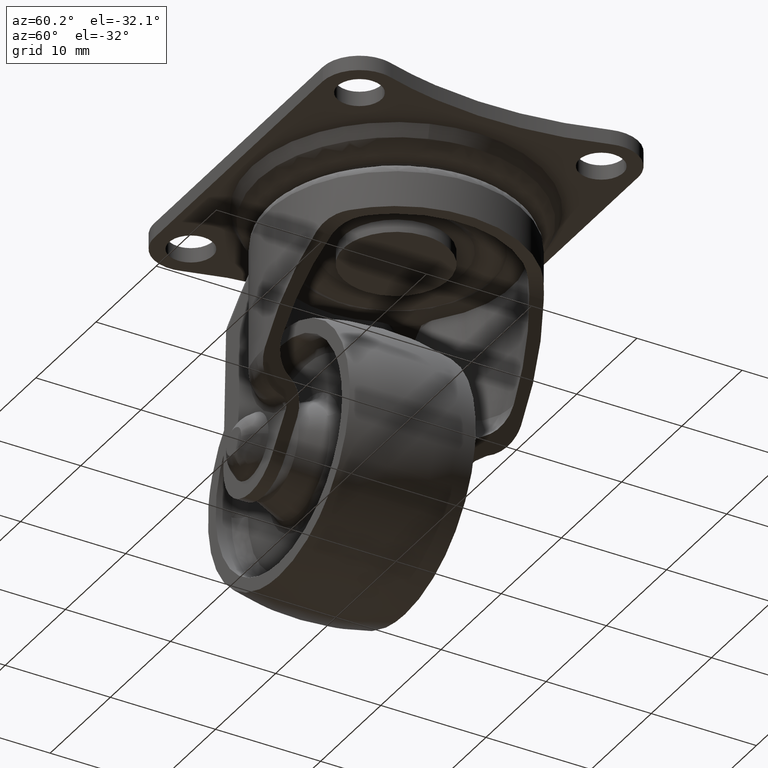
[diagram: clean part render]
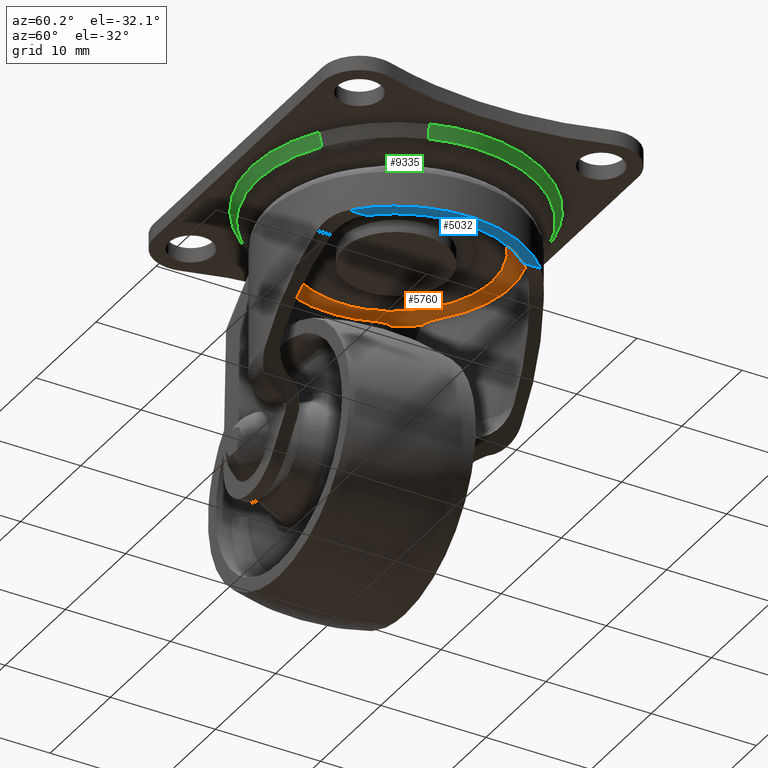
[diagram: same view with three faces highlighted in distinct colors, each labeled with its STEP entity id]
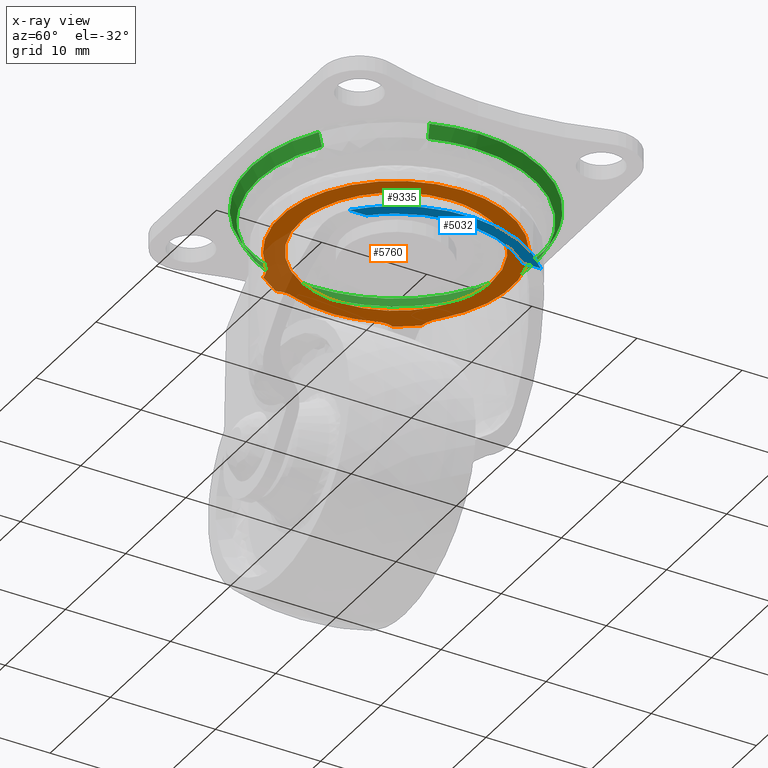
[diagram: x-ray of the same camera — body ghosted, the three highlighted faces saturated]
A machine part, auxiliary view with three faces highlighted in distinct colors.
The next image is the same camera in x-ray (body ghosted, the three faces saturated) — at least one of them is partly hidden behind the body in this view.
Their STEP definitions:

[orange] entity #5760 — the highlighted face is a freeform B-spline surface patch.
#650=CARTESIAN_POINT('',(0.640955220899355,-9.169265091409871,-5.699996641912334));
#651=VERTEX_POINT('',#650);
#665=CARTESIAN_POINT('',(-9.191638786499871,0.0,-5.699998000000001));
#666=VERTEX_POINT('',#665);
#667=CARTESIAN_POINT('',(0.640955220899355,-9.169265091409871,-5.699996641912334));
#668=CARTESIAN_POINT('',(0.320868190813255,-9.191639978524334,-5.699996664017704));
#669=CARTESIAN_POINT('',(0.000000081847118,-9.191639957374065,-5.699996687722237));
#670=CARTESIAN_POINT('',(-9.191638747004900,-9.191639351500124,-5.699997366766071));
#671=CARTESIAN_POINT('',(-9.191638786499871,0.0,-5.699998000000001));
#679=(BOUNDED_CURVE()B_SPLINE_CURVE(2,(#667,#668,#669,#670,#671),.UNSPECIFIED.,.F.,.U.)B_SPLINE_CURVE_WITH_KNOTS((3,2,3),(0.737833831403957,0.750000000000000,1.0),.UNSPECIFIED.)CURVE()GEOMETRIC_REPRESENTATION_ITEM()RATIONAL_B_SPLINE_CURVE((0.972880182797308,0.985746446877111,1.0,0.707106781186547,1.0))REPRESENTATION_ITEM(''));
#680=EDGE_CURVE('',#651,#666,#679,.T.);
#682=CARTESIAN_POINT('',(-0.115502499608276,9.190913053342241,-5.699997999998556));
#683=VERTEX_POINT('',#682);
#684=CARTESIAN_POINT('',(-9.191638786499871,0.0,-5.699998000000001));
#685=CARTESIAN_POINT('',(-9.191638786499871,9.076852957020531,-5.699998000000000));
#686=CARTESIAN_POINT('',(-0.115502499608276,9.190913053342241,-5.699997999998556));
#694=(BOUNDED_CURVE()B_SPLINE_CURVE(2,(#684,#685,#686),.UNSPECIFIED.,.F.,.U.)B_SPLINE_CURVE_WITH_KNOTS((3,3),(0.0,0.247784295920820),.UNSPECIFIED.)CURVE()GEOMETRIC_REPRESENTATION_ITEM()RATIONAL_B_SPLINE_CURVE((1.0,0.709702639985304,0.994854295641922))REPRESENTATION_ITEM(''));
#695=EDGE_CURVE('',#666,#683,#694,.T.);
#782=CARTESIAN_POINT('',(9.191638786499871,0.0,-5.699998000000001));
#783=VERTEX_POINT('',#782);
#784=CARTESIAN_POINT('',(-0.115502499608276,9.190913053342241,-5.699997999998556));
#785=CARTESIAN_POINT('',(-0.057753529803961,9.191638786499873,-5.699998000000001));
#786=CARTESIAN_POINT('',(0.0,9.191638786499871,-5.699998000000001));
#787=CARTESIAN_POINT('',(9.191638786499871,9.191638786499871,-5.699998000000000));
#788=CARTESIAN_POINT('',(9.191638786499871,0.0,-5.699998000000001));
#796=(BOUNDED_CURVE()B_SPLINE_CURVE(2,(#784,#785,#786,#787,#788),.UNSPECIFIED.,.F.,.U.)B_SPLINE_CURVE_WITH_KNOTS((3,2,3),(0.247784295920820,0.250000000000000,0.500000000000000),.UNSPECIFIED.)CURVE()GEOMETRIC_REPRESENTATION_ITEM()RATIONAL_B_SPLINE_CURVE((0.994854295641922,0.997404141201243,1.0,0.707106781186547,1.0))REPRESENTATION_ITEM(''));
#797=EDGE_CURVE('',#683,#783,#796,.T.);
#799=CARTESIAN_POINT('',(9.191638786499871,0.0,-5.699998000000001));
#800=CARTESIAN_POINT('',(9.191638828852017,-8.571549698878044,-5.699997320956165));
#801=CARTESIAN_POINT('',(0.640955220899355,-9.169265091409871,-5.699996641912334));
#809=(BOUNDED_CURVE()B_SPLINE_CURVE(2,(#799,#800,#801),.UNSPECIFIED.,.F.,.U.)B_SPLINE_CURVE_WITH_KNOTS((3,3),(0.500000000000000,0.737833831403957),.UNSPECIFIED.)CURVE()GEOMETRIC_REPRESENTATION_ITEM()RATIONAL_B_SPLINE_CURVE((1.0,0.721360334309436,0.972880182797308))REPRESENTATION_ITEM(''));
#810=EDGE_CURVE('',#783,#651,#809,.T.);
#2595=CARTESIAN_POINT('',(-10.263978305612820,5.563625082850160,-5.699998000000001));
#2596=VERTEX_POINT('',#2595);
#2610=CARTESIAN_POINT('',(-10.235383220148220,4.029507455844700,-5.699998000000001));
#2611=VERTEX_POINT('',#2610);
#2612=CARTESIAN_POINT('',(-10.235383220148220,4.029507455844700,-5.699998000000001));
#2613=CARTESIAN_POINT('',(-9.931066366662758,4.802505061608022,-5.699998000000001));
#2614=CARTESIAN_POINT('',(-10.263978305612820,5.563625082850158,-5.699998000000001));
#2622=(BOUNDED_CURVE()B_SPLINE_CURVE(2,(#2612,#2613,#2614),.UNSPECIFIED.,.F.,.U.)CURVE()GEOMETRIC_REPRESENTATION_ITEM()QUASI_UNIFORM_CURVE()RATIONAL_B_SPLINE_CURVE((1.0,0.923500995789881,1.0))REPRESENTATION_ITEM(''));
#2623=EDGE_CURVE('',#2611,#2596,#2622,.T.);
#2680=CARTESIAN_POINT('',(-10.235383220148220,-4.029507455844700,-5.699998000000001));
#2681=VERTEX_POINT('',#2680);
#2687=CARTESIAN_POINT('',(-10.263978305612820,-5.563625082850160,-5.699998000000001));
#2688=VERTEX_POINT('',#2687);
#2689=CARTESIAN_POINT('',(-10.263978305612820,-5.563625082850160,-5.699998000000001));
#2690=CARTESIAN_POINT('',(-9.931066366662758,-4.802505061608023,-5.699998000000001));
#2691=CARTESIAN_POINT('',(-10.235383220148220,-4.029507455844701,-5.699998000000001));
#2699=(BOUNDED_CURVE()B_SPLINE_CURVE(2,(#2689,#2690,#2691),.UNSPECIFIED.,.F.,.U.)CURVE()GEOMETRIC_REPRESENTATION_ITEM()QUASI_UNIFORM_CURVE()RATIONAL_B_SPLINE_CURVE((1.0,0.923500995789881,1.0))REPRESENTATION_ITEM(''));
#2700=EDGE_CURVE('',#2688,#2681,#2699,.T.);
#3120=CARTESIAN_POINT('',(-8.932137639889501,-7.517984563876110,-5.699998000000001));
#3121=VERTEX_POINT('',#3120);
#3129=CARTESIAN_POINT('',(-7.275815214511270,-8.250000785714290,-5.699998000000001));
#3130=VERTEX_POINT('',#3129);
#3131=CARTESIAN_POINT('',(-7.275815214511265,-8.250000785714287,-5.699998000000001));
#3132=CARTESIAN_POINT('',(-7.988107636542360,-7.621818052644859,-5.699998000000002));
#3133=CARTESIAN_POINT('',(-8.932137639889501,-7.517984563876112,-5.699998000000001));
#3141=(BOUNDED_CURVE()B_SPLINE_CURVE(2,(#3131,#3132,#3133),.UNSPECIFIED.,.F.,.U.)CURVE()GEOMETRIC_REPRESENTATION_ITEM()QUASI_UNIFORM_CURVE()RATIONAL_B_SPLINE_CURVE((1.0,0.953367544172803,1.0))REPRESENTATION_ITEM(''));
#3142=EDGE_CURVE('',#3130,#3121,#3141,.T.);
#3416=CARTESIAN_POINT('',(-7.275815214511270,8.250000785714290,-5.699998000000001));
#3417=VERTEX_POINT('',#3416);
#3423=CARTESIAN_POINT('',(-8.932137639889501,7.517984563876110,-5.699998000000001));
#3424=VERTEX_POINT('',#3423);
#3425=CARTESIAN_POINT('',(-8.932137639889502,7.517984563876111,-5.699998000000001));
#3426=CARTESIAN_POINT('',(-7.988107636542360,7.621818052644859,-5.699998000000001));
#3427=CARTESIAN_POINT('',(-7.275815214511265,8.250000785714287,-5.699998000000001));
#3435=(BOUNDED_CURVE()B_SPLINE_CURVE(2,(#3425,#3426,#3427),.UNSPECIFIED.,.F.,.U.)CURVE()GEOMETRIC_REPRESENTATION_ITEM()QUASI_UNIFORM_CURVE()RATIONAL_B_SPLINE_CURVE((1.0,0.953367544172803,1.0))REPRESENTATION_ITEM(''));
#3436=EDGE_CURVE('',#3424,#3417,#3435,.T.);
#5193=CARTESIAN_POINT('',(-7.275815214511273,8.250000785714283,-5.699998000000001));
#5194=CARTESIAN_POINT('',(0.636537104773647,15.228038107469818,-5.699998000000002));
#5195=CARTESIAN_POINT('',(7.938936569173584,7.614019053734915,-5.699998000000001));
#5196=CARTESIAN_POINT('',(15.241336033573523,1.214306E-014,-5.699998000000002));
#5197=CARTESIAN_POINT('',(7.938936569173596,-7.614019053734904,-5.699998000000001));
#5198=CARTESIAN_POINT('',(0.636537104773664,-15.228038107469832,-5.699998000000002));
#5199=CARTESIAN_POINT('',(-7.275815214511269,-8.250000785714287,-5.699998000000001));
#5207=(BOUNDED_CURVE()B_SPLINE_CURVE(2,(#5193,#5194,#5195,#5196,#5197,#5198,#5199),.UNSPECIFIED.,.F.,.U.)B_SPLINE_CURVE_WITH_KNOTS((3,2,2,3),(0.0,0.333333333333333,0.666666666666667,1.0),.UNSPECIFIED.)CURVE()GEOMETRIC_REPRESENTATION_ITEM()RATIONAL_B_SPLINE_CURVE((1.0,0.721721506288508,1.0,0.721721506288508,1.0,0.721721506288508,1.0))REPRESENTATION_ITEM(''));
#5208=EDGE_CURVE('',#3417,#3130,#5207,.T.);
#5309=CARTESIAN_POINT('',(-8.932137639889499,-7.517984563876106,-5.699998000000001));
#5310=CARTESIAN_POINT('',(-9.697544790603258,-6.608602273630208,-5.699998000000001));
#5311=CARTESIAN_POINT('',(-10.263978305612820,-5.563625082850163,-5.699998000000001));
#5319=(BOUNDED_CURVE()B_SPLINE_CURVE(2,(#5309,#5310,#5311),.UNSPECIFIED.,.F.,.U.)CURVE()GEOMETRIC_REPRESENTATION_ITEM()QUASI_UNIFORM_CURVE()RATIONAL_B_SPLINE_CURVE((1.0,0.994857291440790,1.0))REPRESENTATION_ITEM(''));
#5320=EDGE_CURVE('',#3121,#2688,#5319,.T.);
#5360=CARTESIAN_POINT('',(-10.263978305612820,5.563625082850161,-5.699998000000001));
#5361=CARTESIAN_POINT('',(-9.697544790603262,6.608602273630203,-5.699998000000001));
#5362=CARTESIAN_POINT('',(-8.932137639889501,7.517984563876103,-5.699998000000001));
#5370=(BOUNDED_CURVE()B_SPLINE_CURVE(2,(#5360,#5361,#5362),.UNSPECIFIED.,.F.,.U.)CURVE()GEOMETRIC_REPRESENTATION_ITEM()QUASI_UNIFORM_CURVE()RATIONAL_B_SPLINE_CURVE((1.0,0.994857291440790,1.0))REPRESENTATION_ITEM(''));
#5371=EDGE_CURVE('',#2596,#3424,#5370,.T.);
#5476=CARTESIAN_POINT('',(-10.235383220148231,-4.029507455844703,-5.699998000000001));
#5477=CARTESIAN_POINT('',(-11.821736167319358,-3.469447E-015,-5.699998000000001));
#5478=CARTESIAN_POINT('',(-10.235383220148231,4.029507455844700,-5.699998000000001));
#5486=(BOUNDED_CURVE()B_SPLINE_CURVE(2,(#5476,#5477,#5478),.UNSPECIFIED.,.F.,.U.)CURVE()GEOMETRIC_REPRESENTATION_ITEM()QUASI_UNIFORM_CURVE()RATIONAL_B_SPLINE_CURVE((1.0,0.930489383649839,1.0))REPRESENTATION_ITEM(''));
#5487=EDGE_CURVE('',#2681,#2611,#5486,.T.);
#5739=CARTESIAN_POINT('',(-12.098899957359730,-12.088344324271880,-5.699998000000001));
#5740=CARTESIAN_POINT('',(12.098900547445680,-12.088344324271880,-5.699998000000001));
#5741=CARTESIAN_POINT('',(-12.098899957359730,12.088343002598251,-5.699998000000001));
#5742=CARTESIAN_POINT('',(12.098900547445680,12.088343002598251,-5.699998000000001));
#5743=B_SPLINE_SURFACE_WITH_KNOTS('',1,1,((#5739,#5741),(#5740,#5742)),.UNSPECIFIED.,.F.,.F.,.U.,(2,2),(2,2),(0.0,24.197800504805411),(0.0,24.176687326870130),.UNSPECIFIED.);
#5744=ORIENTED_EDGE('',*,*,#5320,.T.);
#5745=ORIENTED_EDGE('',*,*,#2700,.T.);
#5746=ORIENTED_EDGE('',*,*,#5487,.T.);
#5747=ORIENTED_EDGE('',*,*,#2623,.T.);
#5748=ORIENTED_EDGE('',*,*,#5371,.T.);
#5749=ORIENTED_EDGE('',*,*,#3436,.T.);
#5750=ORIENTED_EDGE('',*,*,#5208,.T.);
#5751=ORIENTED_EDGE('',*,*,#3142,.T.);
#5752=EDGE_LOOP('',(#5744,#5745,#5746,#5747,#5748,#5749,#5750,#5751));
#5753=FACE_OUTER_BOUND('',#5752,.T.);
#5754=ORIENTED_EDGE('',*,*,#695,.F.);
#5755=ORIENTED_EDGE('',*,*,#680,.F.);
#5756=ORIENTED_EDGE('',*,*,#810,.F.);
#5757=ORIENTED_EDGE('',*,*,#797,.F.);
#5758=EDGE_LOOP('',(#5754,#5755,#5756,#5757));
#5759=FACE_BOUND('',#5758,.T.);
#5760=ADVANCED_FACE('',(#5753,#5759),#5743,.F.);

[blue] entity #5032 — the highlighted face is a freeform B-spline surface patch.
#4979=CARTESIAN_POINT('',(12.404795246418839,-10.034448668749681,-8.900000000000000));
#4980=CARTESIAN_POINT('',(7.895195515276496,-10.034448668749681,-8.900000000000000));
#4981=CARTESIAN_POINT('',(12.404795246418839,10.034448016217890,-8.900000000000000));
#4982=CARTESIAN_POINT('',(7.895195515276496,10.034448016217890,-8.900000000000000));
#4983=B_SPLINE_SURFACE_WITH_KNOTS('',1,1,((#4979,#4981),(#4980,#4982)),.UNSPECIFIED.,.F.,.F.,.U.,(2,2),(2,2),(0.0,4.509599731142346),(0.0,20.068896684967580),.UNSPECIFIED.);
#4984=CARTESIAN_POINT('',(8.099991054950829,9.123055678319441,-8.900000000000000));
#4985=VERTEX_POINT('',#4984);
#4986=CARTESIAN_POINT('',(8.099991054950829,-9.123055678319441,-8.900000000000000));
#4987=VERTEX_POINT('',#4986);
#4988=CARTESIAN_POINT('',(8.099991054950827,9.123055678319442,-8.900000000000000));
#4989=CARTESIAN_POINT('',(12.200000000000001,5.482824055154087,-8.900000000000000));
#4990=CARTESIAN_POINT('',(12.199999999999999,0.0,-8.900000000000000));
#4991=CARTESIAN_POINT('',(12.200000000000001,-5.482824055154083,-8.900000000000000));
#4992=CARTESIAN_POINT('',(8.099991054950829,-9.123055678319439,-8.900000000000000));
#5000=(BOUNDED_CURVE()B_SPLINE_CURVE(2,(#4988,#4989,#4990,#4991,#4992),.UNSPECIFIED.,.F.,.U.)B_SPLINE_CURVE_WITH_KNOTS((3,2,3),(0.0,0.500000000000000,1.0),.UNSPECIFIED.)CURVE()GEOMETRIC_REPRESENTATION_ITEM()RATIONAL_B_SPLINE_CURVE((1.0,0.912122166441742,1.0,0.912122166441742,1.0))REPRESENTATION_ITEM(''));
#5001=EDGE_CURVE('',#4985,#4987,#5000,.T.);
#5002=ORIENTED_EDGE('',*,*,#5001,.T.);
#5003=CARTESIAN_POINT('',(8.099991054950829,-7.442455569885290,-8.900000000000000));
#5004=VERTEX_POINT('',#5003);
#5005=CARTESIAN_POINT('',(8.099991054950829,-7.442455569885290,-8.900000000000000));
#5006=CARTESIAN_POINT('',(8.099991054950829,-9.123055678319441,-8.900000000000000));
#5007=QUASI_UNIFORM_CURVE('',1,(#5005,#5006),.UNSPECIFIED.,.F.,.U.);
#5008=EDGE_CURVE('',#5004,#4987,#5007,.T.);
#5009=ORIENTED_EDGE('',*,*,#5008,.F.);
#5010=CARTESIAN_POINT('',(8.099991054950829,7.442455569885290,-8.900000000000000));
#5011=VERTEX_POINT('',#5010);
#5012=CARTESIAN_POINT('',(8.099991054950829,7.442455569885287,-8.900000000000000));
#5013=CARTESIAN_POINT('',(14.938288101694022,8.673617E-016,-8.900000000000000));
#5014=CARTESIAN_POINT('',(8.099991054950829,-7.442455569885286,-8.900000000000000));
#5022=(BOUNDED_CURVE()B_SPLINE_CURVE(2,(#5012,#5013,#5014),.UNSPECIFIED.,.F.,.U.)CURVE()GEOMETRIC_REPRESENTATION_ITEM()QUASI_UNIFORM_CURVE()RATIONAL_B_SPLINE_CURVE((1.0,0.736362823177348,1.0))REPRESENTATION_ITEM(''));
#5023=EDGE_CURVE('',#5011,#5004,#5022,.T.);
#5024=ORIENTED_EDGE('',*,*,#5023,.F.);
#5025=CARTESIAN_POINT('',(8.099991054950829,9.123055678319441,-8.900000000000000));
#5026=CARTESIAN_POINT('',(8.099991054950829,7.442455569885290,-8.900000000000000));
#5027=QUASI_UNIFORM_CURVE('',1,(#5025,#5026),.UNSPECIFIED.,.F.,.U.);
#5028=EDGE_CURVE('',#4985,#5011,#5027,.T.);
#5029=ORIENTED_EDGE('',*,*,#5028,.F.);
#5030=EDGE_LOOP('',(#5002,#5009,#5024,#5029));
#5031=FACE_OUTER_BOUND('',#5030,.T.);
#5032=ADVANCED_FACE('',(#5031),#4983,.T.);

[green] entity #9335 — the highlighted face is a freeform B-spline surface patch.
#9135=CARTESIAN_POINT('',(12.494963801181456,-4.105999329752152,-2.828268550472628));
#9136=CARTESIAN_POINT('',(14.439858627486876,1.812508809229494,-2.828268550472629));
#9137=CARTESIAN_POINT('',(11.092548714147011,7.066732902341463,-2.828268550472629));
#9138=CARTESIAN_POINT('',(4.025815811805551,18.159281616488474,-2.828268550472628));
#9139=CARTESIAN_POINT('',(-7.066732902341463,11.092548714147011,-2.828268550472629));
#9140=CARTESIAN_POINT('',(-18.159281616488474,4.025815811805551,-2.828268550472628));
#9141=CARTESIAN_POINT('',(-11.092548714147011,-7.066732902341463,-2.828268550472629));
#9142=CARTESIAN_POINT('',(-4.025815811805551,-18.159281616488474,-2.828268550472628));
#9143=CARTESIAN_POINT('',(7.066732902341463,-11.092548714147011,-2.828268550472629));
#9144=CARTESIAN_POINT('',(13.060981837803297,-4.291999842917079,-1.646133125278612));
#9145=CARTESIAN_POINT('',(15.093979804584990,1.894614903643539,-1.646133125278611));
#9146=CARTESIAN_POINT('',(11.595037776477870,7.386853740333496,-1.646133125278612));
#9147=CARTESIAN_POINT('',(4.208184036144378,18.981891516811366,-1.646133125278612));
#9148=CARTESIAN_POINT('',(-7.386853740333496,11.595037776477870,-1.646133125278612));
#9149=CARTESIAN_POINT('',(-18.981891516811366,4.208184036144378,-1.646133125278612));
#9150=CARTESIAN_POINT('',(-11.595037776477870,-7.386853740333496,-1.646133125278612));
#9151=CARTESIAN_POINT('',(-4.208184036144378,-18.981891516811366,-1.646133125278612));
#9152=CARTESIAN_POINT('',(7.386853740333496,-11.595037776477870,-1.646133125278612));
#9160=(BOUNDED_SURFACE()B_SPLINE_SURFACE(2,1,((#9135,#9144),(#9136,#9145),(#9137,#9146),(#9138,#9147),(#9139,#9148),(#9140,#9149),(#9141,#9150),(#9142,#9151),(#9143,#9152)),.UNSPECIFIED.,.F.,.F.,.U.)B_SPLINE_SURFACE_WITH_KNOTS((3,2,2,2,3),(2,2),(0.0,12.756023453499409,35.534636763319781,58.313250073140161,81.091863382960540),(0.0,1.0),.UNSPECIFIED.)GEOMETRIC_REPRESENTATION_ITEM()RATIONAL_B_SPLINE_SURFACE(((0.855662221768731,0.855662221768731),(0.835979797464467,0.835979797464467),(1.0,1.0),(0.707106781186548,0.707106781186548),(1.0,1.0),(0.707106781186548,0.707106781186548),(1.0,1.0),(0.707106781186548,0.707106781186548),(1.0,1.0)))REPRESENTATION_ITEM('')SURFACE());
#9161=CARTESIAN_POINT('',(12.508432404113330,-4.110425278918332,-2.800139212494544));
#9162=VERTEX_POINT('',#9161);
#9163=CARTESIAN_POINT('',(13.166490693493159,0.0,-2.800139212494620));
#9164=VERTEX_POINT('',#9163);
#9165=CARTESIAN_POINT('',(12.508432404113325,-4.110425278918333,-2.800139212494544));
#9166=CARTESIAN_POINT('',(13.166490693493158,-2.107888540714995,-2.800139212494620));
#9167=CARTESIAN_POINT('',(13.166490693493159,0.0,-2.800139212494620));
#9175=(BOUNDED_CURVE()B_SPLINE_CURVE(2,(#9165,#9166,#9167),.UNSPECIFIED.,.F.,.U.)B_SPLINE_CURVE_WITH_KNOTS((3,3),(0.446917947511680,0.500000000000000),.UNSPECIFIED.)CURVE()GEOMETRIC_REPRESENTATION_ITEM()RATIONAL_B_SPLINE_CURVE((0.902030181676702,0.937810507141885,1.0))REPRESENTATION_ITEM(''));
#9176=EDGE_CURVE('',#9162,#9164,#9175,.T.);
#9177=ORIENTED_EDGE('',*,*,#9176,.T.);
#9178=CARTESIAN_POINT('',(-11.616679221768109,6.197518942232530,-2.800139212573901));
#9179=VERTEX_POINT('',#9178);
#9180=CARTESIAN_POINT('',(13.166490693493159,0.0,-2.800139212494620));
#9181=CARTESIAN_POINT('',(13.166490693493161,13.166490693493161,-2.800139212494620));
#9182=CARTESIAN_POINT('',(0.0,13.166490693493159,-2.800139212494620));
#9183=CARTESIAN_POINT('',(-7.898720447894549,13.166490693493156,-2.800139212494620));
#9184=CARTESIAN_POINT('',(-11.616679221768115,6.197518942232530,-2.800139212573901));
#9192=(BOUNDED_CURVE()B_SPLINE_CURVE(2,(#9180,#9181,#9182,#9183,#9184),.UNSPECIFIED.,.F.,.U.)B_SPLINE_CURVE_WITH_KNOTS((3,2,3),(0.500000000000000,0.750000000000000,0.919885466191596),.UNSPECIFIED.)CURVE()GEOMETRIC_REPRESENTATION_ITEM()RATIONAL_B_SPLINE_CURVE((1.0,0.707106781186548,1.0,0.800966795910078,0.872436381135544))REPRESENTATION_ITEM(''));
#9193=EDGE_CURVE('',#9164,#9179,#9192,.T.);
#9194=ORIENTED_EDGE('',*,*,#9193,.T.);
#9195=CARTESIAN_POINT('',(-13.166490693493159,0.0,-2.800139212494620));
#9196=VERTEX_POINT('',#9195);
#9197=CARTESIAN_POINT('',(-11.616679221768115,6.197518942232530,-2.800139212573901));
#9198=CARTESIAN_POINT('',(-13.166490693493161,3.292539887144247,-2.800139212494620));
#9199=CARTESIAN_POINT('',(-13.166490693493159,0.0,-2.800139212494620));
#9207=(BOUNDED_CURVE()B_SPLINE_CURVE(2,(#9197,#9198,#9199),.UNSPECIFIED.,.F.,.U.)B_SPLINE_CURVE_WITH_KNOTS((3,3),(0.919885466191596,1.0),.UNSPECIFIED.)CURVE()GEOMETRIC_REPRESENTATION_ITEM()RATIONAL_B_SPLINE_CURVE((0.872436381135544,0.906139985276470,1.0))REPRESENTATION_ITEM(''));
#9208=EDGE_CURVE('',#9179,#9196,#9207,.T.);
#9209=ORIENTED_EDGE('',*,*,#9208,.T.);
#9210=CARTESIAN_POINT('',(-4.814755914170824,-12.254575058919229,-2.800138669547468));
#9211=VERTEX_POINT('',#9210);
#9212=CARTESIAN_POINT('',(-13.166490693493159,0.0,-2.800139212494620));
#9213=CARTESIAN_POINT('',(-13.166490693493165,-8.973223577375659,-2.800139212494620));
#9214=CARTESIAN_POINT('',(-4.814755914170824,-12.254575058919233,-2.800138669547468));
#9222=(BOUNDED_CURVE()B_SPLINE_CURVE(2,(#9212,#9213,#9214),.UNSPECIFIED.,.F.,.U.)B_SPLINE_CURVE_WITH_KNOTS((3,3),(0.0,0.187908143668375),.UNSPECIFIED.)CURVE()GEOMETRIC_REPRESENTATION_ITEM()RATIONAL_B_SPLINE_CURVE((1.0,0.779851915838836,0.890644774292660))REPRESENTATION_ITEM(''));
#9223=EDGE_CURVE('',#9196,#9211,#9222,.T.);
#9224=ORIENTED_EDGE('',*,*,#9223,.T.);
#9225=CARTESIAN_POINT('',(7.074350292918092,-11.104505622265901,-2.800139212494382));
#9226=VERTEX_POINT('',#9225);
#9227=CARTESIAN_POINT('',(-4.814755914170824,-12.254575058919233,-2.800138669547468));
#9228=CARTESIAN_POINT('',(-2.493736449541153,-13.166490693493163,-2.800139212494620));
#9229=CARTESIAN_POINT('',(0.0,-13.166490693493159,-2.800139212494620));
#9230=CARTESIAN_POINT('',(3.837682066383475,-13.166490693493163,-2.800139212494620));
#9231=CARTESIAN_POINT('',(7.074350292918092,-11.104505622265904,-2.800139212494382));
#9239=(BOUNDED_CURVE()B_SPLINE_CURVE(2,(#9227,#9228,#9229,#9230,#9231),.UNSPECIFIED.,.F.,.U.)B_SPLINE_CURVE_WITH_KNOTS((3,2,3),(0.187908143668375,0.250000000000000,0.341950076714168),.UNSPECIFIED.)CURVE()GEOMETRIC_REPRESENTATION_ITEM()RATIONAL_B_SPLINE_CURVE((0.890644774292660,0.927254865347712,1.0,0.892273784244174,0.863791038911349))REPRESENTATION_ITEM(''));
#9240=EDGE_CURVE('',#9211,#9226,#9239,.T.);
#9241=ORIENTED_EDGE('',*,*,#9240,.T.);
#9242=CARTESIAN_POINT('',(7.379045914953810,-11.582781945579370,-1.674965696875739));
#9243=VERTEX_POINT('',#9242);
#9244=CARTESIAN_POINT('',(7.074350292918092,-11.104505622265901,-2.800139212494382));
#9245=CARTESIAN_POINT('',(7.379045914953810,-11.582781945579370,-1.674965696875739));
#9246=QUASI_UNIFORM_CURVE('',1,(#9244,#9245),.UNSPECIFIED.,.F.,.U.);
#9247=EDGE_CURVE('',#9226,#9243,#9246,.T.);
#9248=ORIENTED_EDGE('',*,*,#9247,.T.);
#9249=CARTESIAN_POINT('',(-13.733577691695180,0.0,-1.674965696876345));
#9250=VERTEX_POINT('',#9249);
#9251=CARTESIAN_POINT('',(7.379045914953810,-11.582781945579365,-1.674965696875739));
#9252=CARTESIAN_POINT('',(4.002972852956223,-13.733577691695180,-1.674965696876345));
#9253=CARTESIAN_POINT('',(0.0,-13.733577691695180,-1.674965696876345));
#9254=CARTESIAN_POINT('',(-13.733577691695180,-13.733577691695180,-1.674965696876345));
#9255=CARTESIAN_POINT('',(-13.733577691695180,0.0,-1.674965696876345));
#9263=(BOUNDED_CURVE()B_SPLINE_CURVE(2,(#9251,#9252,#9253,#9254,#9255),.UNSPECIFIED.,.F.,.U.)B_SPLINE_CURVE_WITH_KNOTS((3,2,3),(0.158049923285752,0.250000000000000,0.500000000000000),.UNSPECIFIED.)CURVE()GEOMETRIC_REPRESENTATION_ITEM()RATIONAL_B_SPLINE_CURVE((0.863791038911300,0.892273784244080,1.0,0.707106781186548,1.0))REPRESENTATION_ITEM(''));
#9264=EDGE_CURVE('',#9243,#9250,#9263,.T.);
#9265=ORIENTED_EDGE('',*,*,#9264,.T.);
#9266=CARTESIAN_POINT('',(-12.275640642749940,6.157905733881878,-1.674965696624807));
#9267=VERTEX_POINT('',#9266);
#9268=CARTESIAN_POINT('',(-13.733577691695180,0.0,-1.674965696876345));
#9269=CARTESIAN_POINT('',(-13.733577691695176,3.251542423402904,-1.674965696876345));
#9270=CARTESIAN_POINT('',(-12.275640642749938,6.157905733881878,-1.674965696624807));
#9278=(BOUNDED_CURVE()B_SPLINE_CURVE(2,(#9268,#9269,#9270),.UNSPECIFIED.,.F.,.U.)B_SPLINE_CURVE_WITH_KNOTS((3,3),(0.500000000000000,0.576230937884278),.UNSPECIFIED.)CURVE()GEOMETRIC_REPRESENTATION_ITEM()RATIONAL_B_SPLINE_CURVE((1.0,0.910689900919621,0.875845342762724))REPRESENTATION_ITEM(''));
#9279=EDGE_CURVE('',#9250,#9267,#9278,.T.);
#9280=ORIENTED_EDGE('',*,*,#9279,.T.);
#9281=CARTESIAN_POINT('',(6.157905733881874,12.275640642749950,-1.674965696624807));
#9282=VERTEX_POINT('',#9281);
#9283=CARTESIAN_POINT('',(-12.275640642749943,6.157905733881878,-1.674965696624807));
#9284=CARTESIAN_POINT('',(-8.475409343512320,13.733577691695176,-1.674965696876345));
#9285=CARTESIAN_POINT('',(0.0,13.733577691695180,-1.674965696876345));
#9286=CARTESIAN_POINT('',(3.251542423402842,13.733577691695183,-1.674965696876345));
#9287=CARTESIAN_POINT('',(6.157905733881874,12.275640642749947,-1.674965696624807));
#9295=(BOUNDED_CURVE()B_SPLINE_CURVE(2,(#9283,#9284,#9285,#9286,#9287),.UNSPECIFIED.,.F.,.U.)B_SPLINE_CURVE_WITH_KNOTS((3,2,3),(0.576230937884278,0.750000000000000,0.826230937884277),.UNSPECIFIED.)CURVE()GEOMETRIC_REPRESENTATION_ITEM()RATIONAL_B_SPLINE_CURVE((0.875845342762724,0.796416880266926,1.0,0.910689900919623,0.875845342762725))REPRESENTATION_ITEM(''));
#9296=EDGE_CURVE('',#9267,#9282,#9295,.T.);
#9297=ORIENTED_EDGE('',*,*,#9296,.T.);
#9298=CARTESIAN_POINT('',(13.733577691695180,0.0,-1.674965696876345));
#9299=VERTEX_POINT('',#9298);
#9300=CARTESIAN_POINT('',(6.157905733881874,12.275640642749945,-1.674965696624807));
#9301=CARTESIAN_POINT('',(13.733577691695180,8.475409343512327,-1.674965696876345));
#9302=CARTESIAN_POINT('',(13.733577691695180,0.0,-1.674965696876345));
#9310=(BOUNDED_CURVE()B_SPLINE_CURVE(2,(#9300,#9301,#9302),.UNSPECIFIED.,.F.,.U.)B_SPLINE_CURVE_WITH_KNOTS((3,3),(0.826230937884278,1.0),.UNSPECIFIED.)CURVE()GEOMETRIC_REPRESENTATION_ITEM()RATIONAL_B_SPLINE_CURVE((0.875845342762724,0.796416880266926,1.0))REPRESENTATION_ITEM(''));
#9311=EDGE_CURVE('',#9282,#9299,#9310,.T.);
#9312=ORIENTED_EDGE('',*,*,#9311,.T.);
#9313=CARTESIAN_POINT('',(13.047176519711940,-4.287463245014472,-1.674965696873099));
#9314=VERTEX_POINT('',#9313);
#9315=CARTESIAN_POINT('',(13.733577691695180,0.0,-1.674965696876345));
#9316=CARTESIAN_POINT('',(13.733577691695185,-2.198676299821216,-1.674965696876345));
#9317=CARTESIAN_POINT('',(13.047176519711931,-4.287463245014472,-1.674965696873098));
#9325=(BOUNDED_CURVE()B_SPLINE_CURVE(2,(#9315,#9316,#9317),.UNSPECIFIED.,.F.,.U.)B_SPLINE_CURVE_WITH_KNOTS((3,3),(0.0,0.053082052488761),.UNSPECIFIED.)CURVE()GEOMETRIC_REPRESENTATION_ITEM()RATIONAL_B_SPLINE_CURVE((1.0,0.937810507141368,0.902030181676107))REPRESENTATION_ITEM(''));
#9326=EDGE_CURVE('',#9299,#9314,#9325,.T.);
#9327=ORIENTED_EDGE('',*,*,#9326,.T.);
#9328=CARTESIAN_POINT('',(12.508432404113330,-4.110425278918332,-2.800139212494544));
#9329=CARTESIAN_POINT('',(13.047176519711940,-4.287463245014472,-1.674965696873099));
#9330=QUASI_UNIFORM_CURVE('',1,(#9328,#9329),.UNSPECIFIED.,.F.,.U.);
#9331=EDGE_CURVE('',#9162,#9314,#9330,.T.);
#9332=ORIENTED_EDGE('',*,*,#9331,.F.);
#9333=EDGE_LOOP('',(#9177,#9194,#9209,#9224,#9241,#9248,#9265,#9280,#9297,#9312,#9327,#9332));
#9334=FACE_OUTER_BOUND('',#9333,.T.);
#9335=ADVANCED_FACE('',(#9334),#9160,.T.);